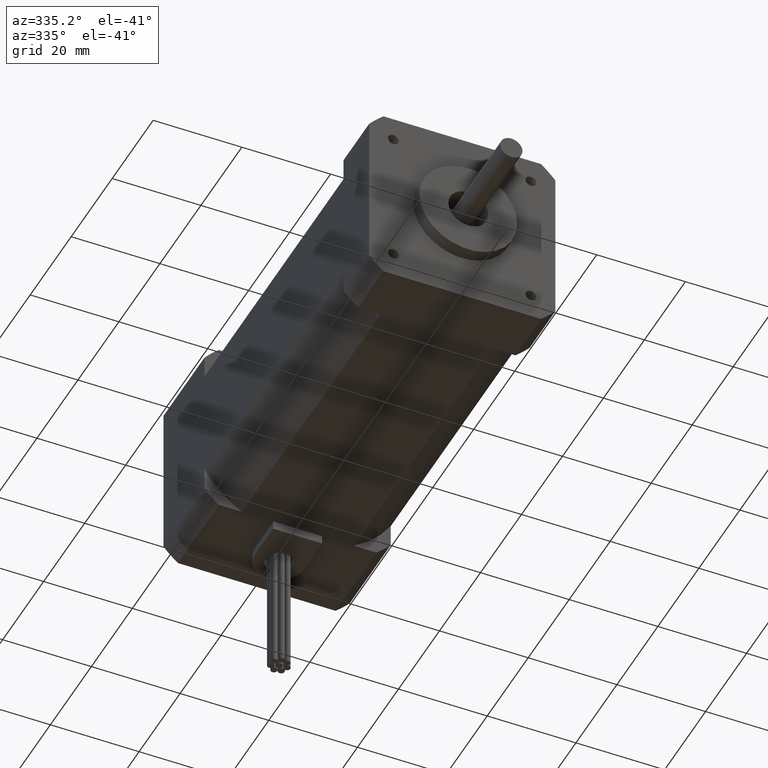
[diagram: clean part render]
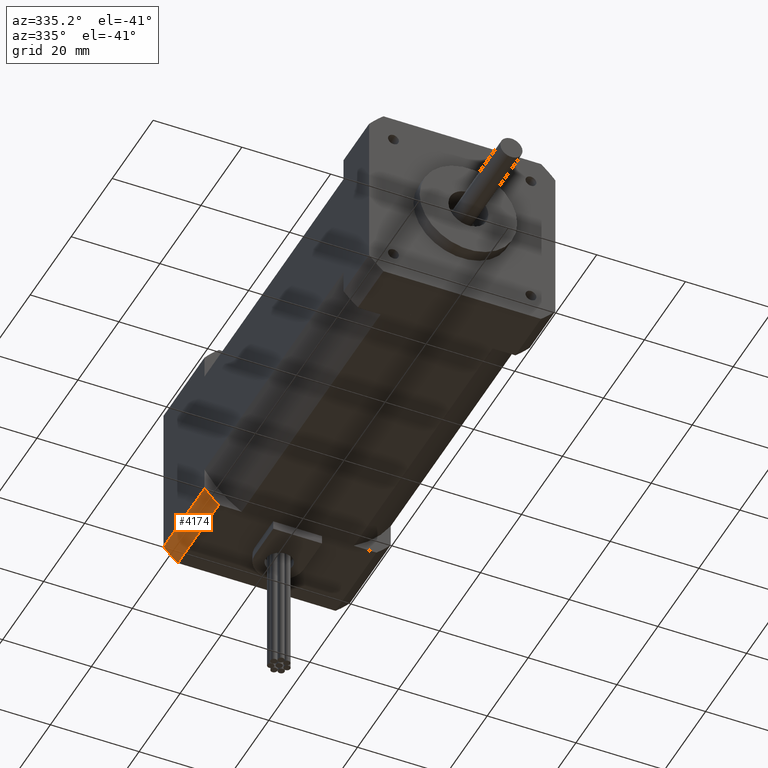
[diagram: same view with one face highlighted and labeled with its STEP entity id]
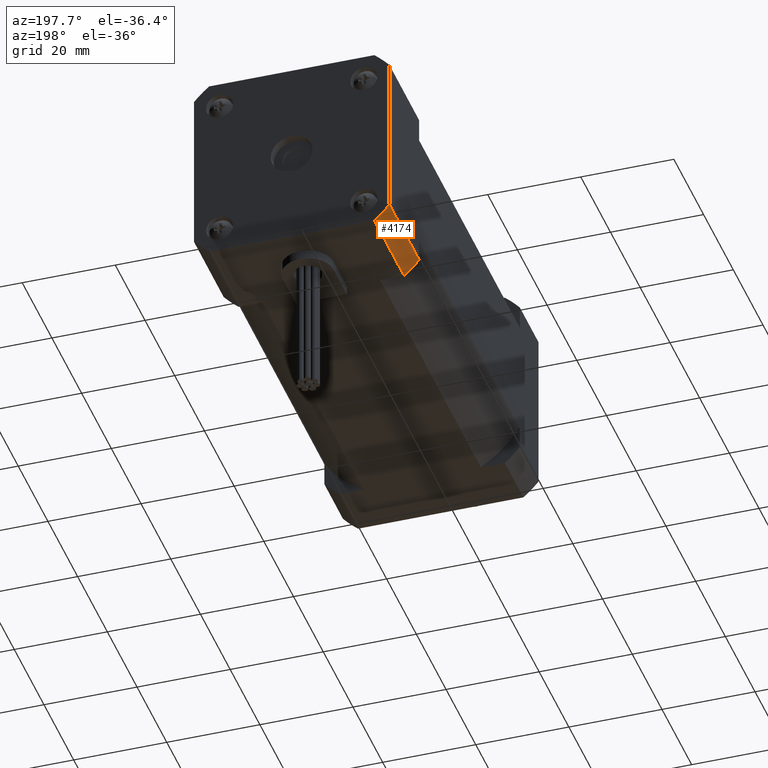
[diagram: same view with one face highlighted and labeled with its STEP entity id]
A machine part, auxiliary view. The second image highlights one B-rep face of the part: STEP entity #4174.
A second angle (auxiliary view) of the same face is appended — the face is thin or edge-on in the first view.
In plain terms, the highlighted cylindrical surface (partial cylindrical patch) has radius 27.5 mm, axis along (0, 1, -0).
Its self-contained STEP definition (entity closure, byte-faithful):
#373=LINE('',#6390,#595);
#380=LINE('',#6404,#602);
#595=VECTOR('',#5144,2.);
#602=VECTOR('',#5153,2.);
#908=FACE_OUTER_BOUND('',#1196,.T.);
#1196=EDGE_LOOP('',(#2857,#2858,#2859,#2860));
#1515=CIRCLE('',#4496,2.75);
#1518=CIRCLE('',#4502,2.75);
#1780=VERTEX_POINT('',#6387);
#1781=VERTEX_POINT('',#6389);
#1786=VERTEX_POINT('',#6401);
#1787=VERTEX_POINT('',#6403);
#2201=EDGE_CURVE('',#1780,#1781,#373,.T.);
#2208=EDGE_CURVE('',#1787,#1786,#380,.T.);
#2212=EDGE_CURVE('',#1780,#1787,#1515,.T.);
#2218=EDGE_CURVE('',#1781,#1786,#1518,.T.);
#2857=ORIENTED_EDGE('',*,*,#2212,.T.);
#2858=ORIENTED_EDGE('',*,*,#2208,.T.);
#2859=ORIENTED_EDGE('',*,*,#2218,.F.);
#2860=ORIENTED_EDGE('',*,*,#2201,.F.);
#3817=CYLINDRICAL_SURFACE('',#4501,2.75);
#4174=ADVANCED_FACE('',(#908),#3817,.T.);
#4496=AXIS2_PLACEMENT_3D('',#6411,#5162,#5163);
#4501=AXIS2_PLACEMENT_3D('',#6422,#5175,#5176);
#4502=AXIS2_PLACEMENT_3D('',#6423,#5177,#5178);
#5144=DIRECTION('',(1.45477499778469E-16,1.,-1.24501532695106E-16));
#5153=DIRECTION('',(1.45477499778469E-16,1.,-1.24501532695106E-16));
#5162=DIRECTION('center_axis',(1.45477499778469E-16,1.,-1.24501532695106E-16));
#5163=DIRECTION('ref_axis',(-0.645646578347808,-1.14684773588243E-18,-0.763636363636364));
#5175=DIRECTION('center_axis',(1.45477499778469E-16,1.,-1.24501532695106E-16));
#5176=DIRECTION('ref_axis',(-0.645646578347808,-1.14684773588243E-18,-0.763636363636364));
#5177=DIRECTION('center_axis',(1.45477499778469E-16,1.,-1.24501532695106E-16));
#5178=DIRECTION('ref_axis',(-0.645646578347808,-1.14684773588243E-18,-0.763636363636364));
#6387=CARTESIAN_POINT('',(-2.19078804375545,5.69264350961966,-0.652197207720415));
#6389=CARTESIAN_POINT('',(-2.19078804375545,7.69264350961966,-0.652197207720415));
#6390=CARTESIAN_POINT('',(-2.19078804375545,5.69264350961966,-0.652197207720415));
#6401=CARTESIAN_POINT('',(-2.51525995329898,7.69264350961966,-0.327725298176885));
#6403=CARTESIAN_POINT('',(-2.51525995329898,5.69264350961966,-0.327725298176885));
#6404=CARTESIAN_POINT('',(-2.51525995329898,5.69264350961966,-0.327725298176885));
#6411=CARTESIAN_POINT('Origin',(-0.415259953298976,5.69264350961966,1.44780279227959));
#6422=CARTESIAN_POINT('Origin',(-0.415259953298976,5.69264350961966,1.44780279227959));
#6423=CARTESIAN_POINT('Origin',(-0.415259953298976,7.69264350961966,1.44780279227958));